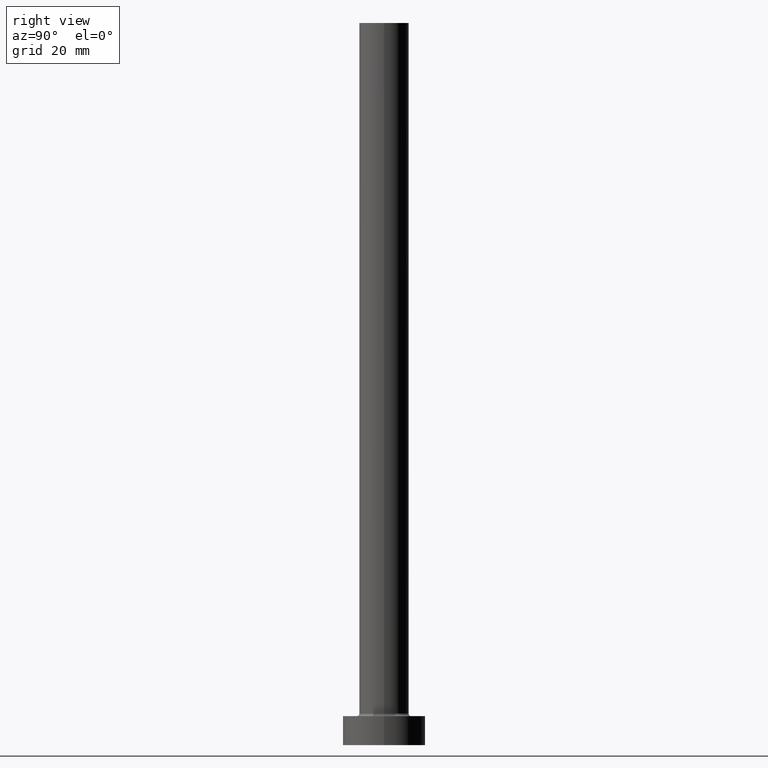
[diagram: clean part render]
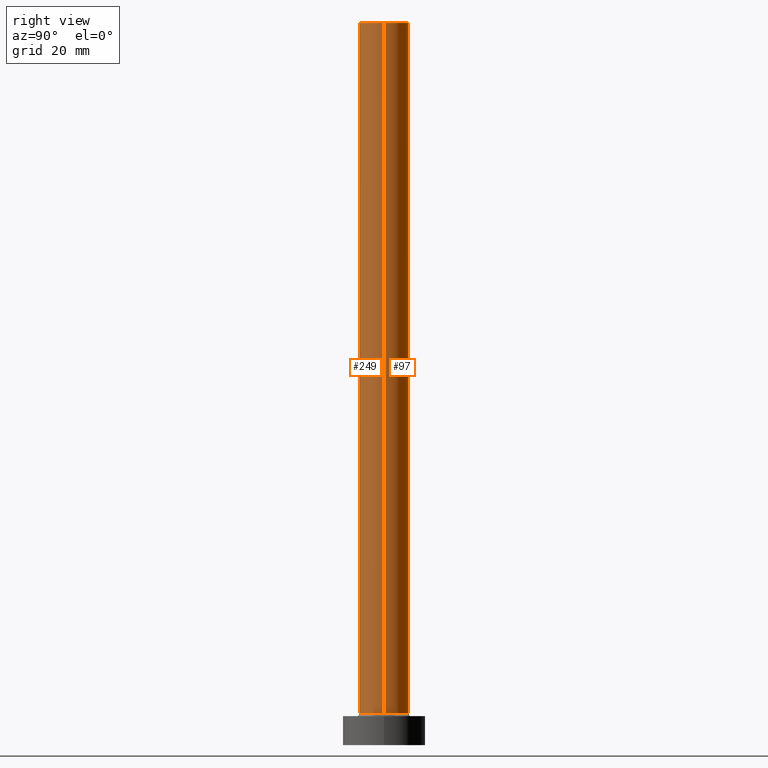
[diagram: same view with one multi-face feature highlighted, each face labeled with its STEP entity id]
A machine part, right view. The highlighted faces form ONE feature: a constant-radius fillet chain: 2 tangent blend faces with common blend radius 6 mm. The faces share edges in the B-rep.
Their STEP definitions:
[1] entity #249 (Cylinder):
#15 = ORIENTED_EDGE ( 'NONE', *, *, #355, .T. ) ;
#29 = LINE ( 'NONE', #270, #313 ) ;
#48 = DIRECTION ( 'NONE',  ( 1.000000000000000000, 0.000000000000000000, 0.000000000000000000 ) ) ;
#50 = VERTEX_POINT ( 'NONE', #243 ) ;
#65 = CARTESIAN_POINT ( 'NONE',  ( 6.000000000000000888, 7.347880794884119736E-16, 175.0000000000000284 ) ) ;
#67 = DIRECTION ( 'NONE',  ( 0.000000000000000000, 0.000000000000000000, 1.000000000000000000 ) ) ;
#70 = VECTOR ( 'NONE', #184, 1000.000000000000000 ) ;
#86 = VERTEX_POINT ( 'NONE', #65 ) ;
#88 = DIRECTION ( 'NONE',  ( -0.000000000000000000, -0.000000000000000000, -1.000000000000000000 ) ) ;
#139 = ORIENTED_EDGE ( 'NONE', *, *, #295, .T. ) ;
#162 = CIRCLE ( 'NONE', #356, 6.000000000000000888 ) ;
#184 = DIRECTION ( 'NONE',  ( -0.000000000000000000, -0.000000000000000000, -1.000000000000000000 ) ) ;
#193 = EDGE_CURVE ( 'NONE', #366, #86, #162, .T. ) ;
#194 = DIRECTION ( 'NONE',  ( -0.000000000000000000, -0.000000000000000000, -1.000000000000000000 ) ) ;
#204 = DIRECTION ( 'NONE',  ( 1.000000000000000000, 0.000000000000000000, 0.000000000000000000 ) ) ;
#207 = EDGE_CURVE ( 'NONE', #86, #358, #209, .T. ) ;
#209 = LINE ( 'NONE', #357, #70 ) ;
#212 = CARTESIAN_POINT ( 'NONE',  ( 6.000000000000000888, 7.347880794884119736E-16, 7.700000000000012612 ) ) ;
#241 = CIRCLE ( 'NONE', #322, 6.000000000000000888 ) ;
#243 = CARTESIAN_POINT ( 'NONE',  ( -6.000000000000000888, 0.000000000000000000, 7.700000000000012612 ) ) ;
#249 = ADVANCED_FACE ( 'NONE', ( #378 ), #300, .T. ) ;
#253 = DIRECTION ( 'NONE',  ( 0.000000000000000000, 0.000000000000000000, 1.000000000000000000 ) ) ;
#258 = ORIENTED_EDGE ( 'NONE', *, *, #193, .F. ) ;
#270 = CARTESIAN_POINT ( 'NONE',  ( -6.000000000000000888, 0.000000000000000000, 175.0000000000000284 ) ) ;
#285 = CARTESIAN_POINT ( 'NONE',  ( 0.000000000000000000, 0.000000000000000000, 175.0000000000000284 ) ) ;
#289 = CARTESIAN_POINT ( 'NONE',  ( -6.000000000000000888, 0.000000000000000000, 175.0000000000000284 ) ) ;
#295 = EDGE_CURVE ( 'NONE', #366, #50, #29, .T. ) ;
#300 = CYLINDRICAL_SURFACE ( 'NONE', #396, 6.000000000000000888 ) ;
#312 = EDGE_LOOP ( 'NONE', ( #338, #258, #139, #15 ) ) ;
#313 = VECTOR ( 'NONE', #194, 1000.000000000000000 ) ;
#322 = AXIS2_PLACEMENT_3D ( 'NONE', #389, #67, #204 ) ;
#338 = ORIENTED_EDGE ( 'NONE', *, *, #207, .F. ) ;
#355 = EDGE_CURVE ( 'NONE', #50, #358, #241, .T. ) ;
#356 = AXIS2_PLACEMENT_3D ( 'NONE', #285, #253, #48 ) ;
#357 = CARTESIAN_POINT ( 'NONE',  ( 6.000000000000000888, 7.347880794884119736E-16, 175.0000000000000284 ) ) ;
#358 = VERTEX_POINT ( 'NONE', #212 ) ;
#366 = VERTEX_POINT ( 'NONE', #289 ) ;
#378 = FACE_OUTER_BOUND ( 'NONE', #312, .T. ) ;
#389 = CARTESIAN_POINT ( 'NONE',  ( 0.000000000000000000, 0.000000000000000000, 7.700000000000012612 ) ) ;
#396 = AXIS2_PLACEMENT_3D ( 'NONE', #450, #88, #452 ) ;
#450 = CARTESIAN_POINT ( 'NONE',  ( 0.000000000000000000, 0.000000000000000000, 175.0000000000000284 ) ) ;
#452 = DIRECTION ( 'NONE',  ( -1.000000000000000000, 0.000000000000000000, 0.000000000000000000 ) ) ;
[2] entity #97 (Cylinder):
#6 = DIRECTION ( 'NONE',  ( -1.000000000000000000, 0.000000000000000000, 0.000000000000000000 ) ) ;
#14 = DIRECTION ( 'NONE',  ( 1.000000000000000000, 0.000000000000000000, 0.000000000000000000 ) ) ;
#26 = AXIS2_PLACEMENT_3D ( 'NONE', #326, #434, #14 ) ;
#29 = LINE ( 'NONE', #270, #313 ) ;
#32 = ORIENTED_EDGE ( 'NONE', *, *, #42, .T. ) ;
#42 = EDGE_CURVE ( 'NONE', #358, #50, #404, .T. ) ;
#46 = EDGE_LOOP ( 'NONE', ( #405, #187, #32, #453 ) ) ;
#50 = VERTEX_POINT ( 'NONE', #243 ) ;
#65 = CARTESIAN_POINT ( 'NONE',  ( 6.000000000000000888, 7.347880794884119736E-16, 175.0000000000000284 ) ) ;
#70 = VECTOR ( 'NONE', #184, 1000.000000000000000 ) ;
#86 = VERTEX_POINT ( 'NONE', #65 ) ;
#97 = ADVANCED_FACE ( 'NONE', ( #114 ), #254, .T. ) ;
#114 = FACE_OUTER_BOUND ( 'NONE', #46, .T. ) ;
#184 = DIRECTION ( 'NONE',  ( -0.000000000000000000, -0.000000000000000000, -1.000000000000000000 ) ) ;
#187 = ORIENTED_EDGE ( 'NONE', *, *, #207, .T. ) ;
#194 = DIRECTION ( 'NONE',  ( -0.000000000000000000, -0.000000000000000000, -1.000000000000000000 ) ) ;
#195 = CARTESIAN_POINT ( 'NONE',  ( 0.000000000000000000, 0.000000000000000000, 7.700000000000012612 ) ) ;
#207 = EDGE_CURVE ( 'NONE', #86, #358, #209, .T. ) ;
#209 = LINE ( 'NONE', #357, #70 ) ;
#212 = CARTESIAN_POINT ( 'NONE',  ( 6.000000000000000888, 7.347880794884119736E-16, 7.700000000000012612 ) ) ;
#224 = EDGE_CURVE ( 'NONE', #86, #366, #444, .T. ) ;
#243 = CARTESIAN_POINT ( 'NONE',  ( -6.000000000000000888, 0.000000000000000000, 7.700000000000012612 ) ) ;
#254 = CYLINDRICAL_SURFACE ( 'NONE', #438, 6.000000000000000888 ) ;
#263 = AXIS2_PLACEMENT_3D ( 'NONE', #195, #276, #420 ) ;
#270 = CARTESIAN_POINT ( 'NONE',  ( -6.000000000000000888, 0.000000000000000000, 175.0000000000000284 ) ) ;
#276 = DIRECTION ( 'NONE',  ( 0.000000000000000000, 0.000000000000000000, 1.000000000000000000 ) ) ;
#289 = CARTESIAN_POINT ( 'NONE',  ( -6.000000000000000888, 0.000000000000000000, 175.0000000000000284 ) ) ;
#295 = EDGE_CURVE ( 'NONE', #366, #50, #29, .T. ) ;
#313 = VECTOR ( 'NONE', #194, 1000.000000000000000 ) ;
#320 = DIRECTION ( 'NONE',  ( -0.000000000000000000, -0.000000000000000000, -1.000000000000000000 ) ) ;
#326 = CARTESIAN_POINT ( 'NONE',  ( 0.000000000000000000, 0.000000000000000000, 175.0000000000000284 ) ) ;
#357 = CARTESIAN_POINT ( 'NONE',  ( 6.000000000000000888, 7.347880794884119736E-16, 175.0000000000000284 ) ) ;
#358 = VERTEX_POINT ( 'NONE', #212 ) ;
#366 = VERTEX_POINT ( 'NONE', #289 ) ;
#404 = CIRCLE ( 'NONE', #263, 6.000000000000000888 ) ;
#405 = ORIENTED_EDGE ( 'NONE', *, *, #224, .F. ) ;
#420 = DIRECTION ( 'NONE',  ( 1.000000000000000000, 0.000000000000000000, 0.000000000000000000 ) ) ;
#423 = CARTESIAN_POINT ( 'NONE',  ( 0.000000000000000000, 0.000000000000000000, 175.0000000000000284 ) ) ;
#434 = DIRECTION ( 'NONE',  ( 0.000000000000000000, 0.000000000000000000, 1.000000000000000000 ) ) ;
#438 = AXIS2_PLACEMENT_3D ( 'NONE', #423, #320, #6 ) ;
#444 = CIRCLE ( 'NONE', #26, 6.000000000000000888 ) ;
#453 = ORIENTED_EDGE ( 'NONE', *, *, #295, .F. ) ;